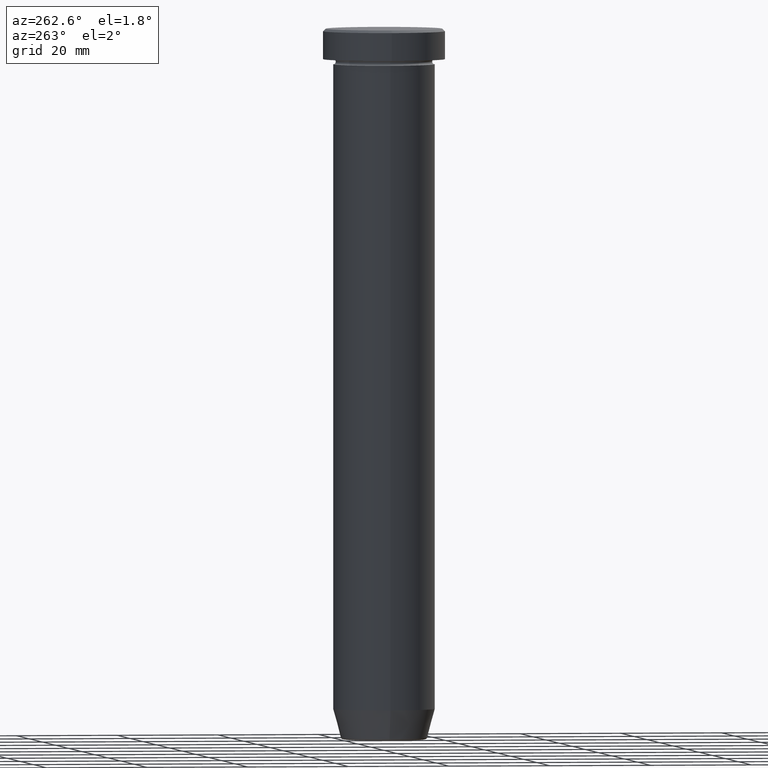
[diagram: clean part render]
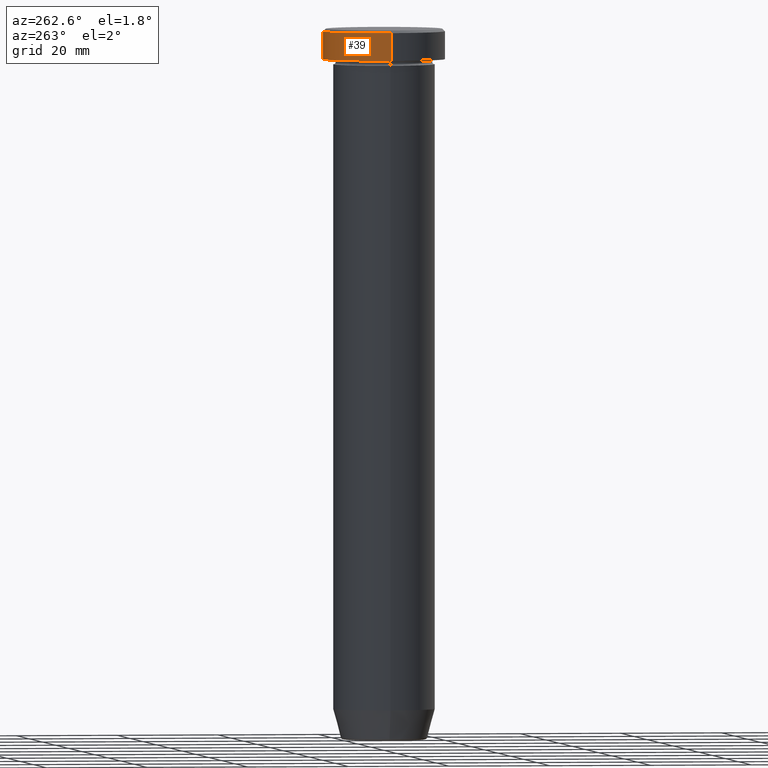
[diagram: same view with one face highlighted and labeled with its STEP entity id]
A machine part, auxiliary view. The second image highlights one B-rep face of the part: STEP entity #39.
In plain terms, the highlighted cylindrical surface (partial cylindrical patch) has radius 12 mm, axis along (-0, -0, 1).
Its self-contained STEP definition (entity closure, byte-faithful):
#20 = CARTESIAN_POINT ( 'NONE',  ( -12.00000000000000000, 1.469576158976823947E-15, -0.5000000000000056621 ) ) ;
#39 = ADVANCED_FACE ( 'NONE', ( #214 ), #479, .T. ) ;
#57 = EDGE_LOOP ( 'NONE', ( #546, #429, #410, #413 ) ) ;
#58 = VECTOR ( 'NONE', #315, 1000.000000000000000 ) ;
#68 = CARTESIAN_POINT ( 'NONE',  ( 0.000000000000000000, 0.000000000000000000, -0.5000000000000056621 ) ) ;
#93 = LINE ( 'NONE', #97, #58 ) ;
#97 = CARTESIAN_POINT ( 'NONE',  ( 12.00000000000000000, 0.000000000000000000, 0.000000000000000000 ) ) ;
#128 = EDGE_CURVE ( 'NONE', #142, #458, #591, .T. ) ;
#142 = VERTEX_POINT ( 'NONE', #598 ) ;
#214 = FACE_OUTER_BOUND ( 'NONE', #57, .T. ) ;
#215 = AXIS2_PLACEMENT_3D ( 'NONE', #402, #295, #448 ) ;
#217 = EDGE_CURVE ( 'NONE', #458, #594, #558, .T. ) ;
#223 = CARTESIAN_POINT ( 'NONE',  ( 12.00000000000000000, 0.000000000000000000, -0.5000000000000056621 ) ) ;
#234 = CARTESIAN_POINT ( 'NONE',  ( 0.000000000000000000, 0.000000000000000000, -5.999999999999999112 ) ) ;
#271 = CARTESIAN_POINT ( 'NONE',  ( 12.00000000000000000, 0.000000000000000000, -5.999999999999999112 ) ) ;
#295 = DIRECTION ( 'NONE',  ( -0.000000000000000000, -0.000000000000000000, 1.000000000000000000 ) ) ;
#298 = DIRECTION ( 'NONE',  ( -0.000000000000000000, -0.000000000000000000, 1.000000000000000000 ) ) ;
#309 = DIRECTION ( 'NONE',  ( 0.000000000000000000, 0.000000000000000000, -1.000000000000000000 ) ) ;
#315 = DIRECTION ( 'NONE',  ( -0.000000000000000000, -0.000000000000000000, 1.000000000000000000 ) ) ;
#327 = EDGE_CURVE ( 'NONE', #506, #594, #93, .T. ) ;
#342 = CIRCLE ( 'NONE', #377, 12.00000000000000000 ) ;
#351 = CARTESIAN_POINT ( 'NONE',  ( -12.00000000000000000, 1.469576158976823947E-15, 0.000000000000000000 ) ) ;
#377 = AXIS2_PLACEMENT_3D ( 'NONE', #234, #467, #485 ) ;
#402 = CARTESIAN_POINT ( 'NONE',  ( 0.000000000000000000, 0.000000000000000000, 0.000000000000000000 ) ) ;
#410 = ORIENTED_EDGE ( 'NONE', *, *, #217, .T. ) ;
#413 = ORIENTED_EDGE ( 'NONE', *, *, #327, .F. ) ;
#429 = ORIENTED_EDGE ( 'NONE', *, *, #128, .T. ) ;
#448 = DIRECTION ( 'NONE',  ( 1.000000000000000000, 0.000000000000000000, 0.000000000000000000 ) ) ;
#451 = EDGE_CURVE ( 'NONE', #506, #142, #342, .T. ) ;
#458 = VERTEX_POINT ( 'NONE', #20 ) ;
#467 = DIRECTION ( 'NONE',  ( -0.000000000000000000, -0.000000000000000000, 1.000000000000000000 ) ) ;
#479 = CYLINDRICAL_SURFACE ( 'NONE', #215, 12.00000000000000000 ) ;
#485 = DIRECTION ( 'NONE',  ( 1.000000000000000000, 0.000000000000000000, 0.000000000000000000 ) ) ;
#506 = VERTEX_POINT ( 'NONE', #271 ) ;
#546 = ORIENTED_EDGE ( 'NONE', *, *, #451, .T. ) ;
#549 = AXIS2_PLACEMENT_3D ( 'NONE', #68, #309, #589 ) ;
#558 = CIRCLE ( 'NONE', #549, 12.00000000000000000 ) ;
#578 = VECTOR ( 'NONE', #298, 1000.000000000000000 ) ;
#589 = DIRECTION ( 'NONE',  ( 1.000000000000000000, 0.000000000000000000, 0.000000000000000000 ) ) ;
#591 = LINE ( 'NONE', #351, #578 ) ;
#594 = VERTEX_POINT ( 'NONE', #223 ) ;
#598 = CARTESIAN_POINT ( 'NONE',  ( -12.00000000000000000, 1.469576158976823947E-15, -5.999999999999999112 ) ) ;